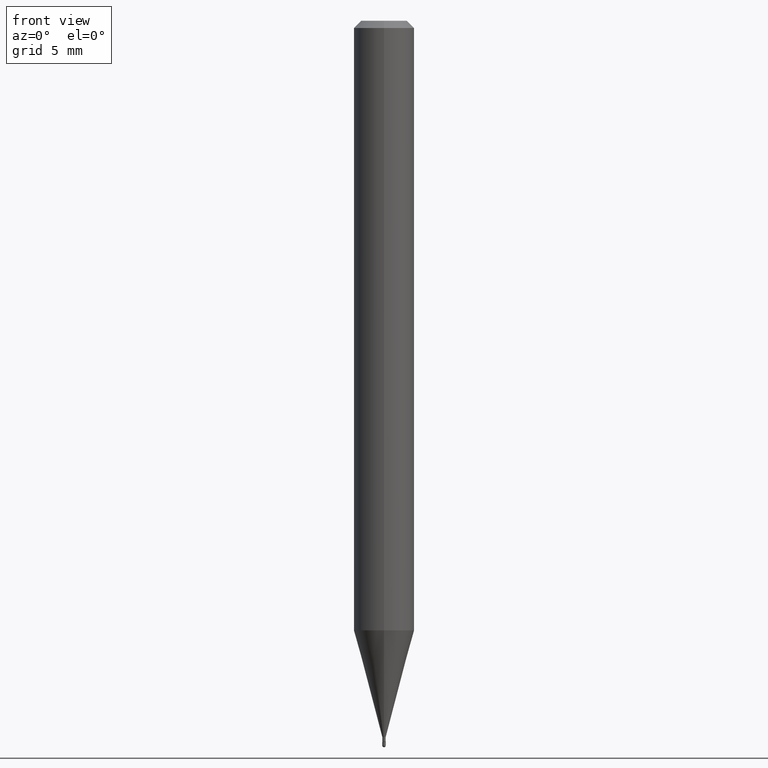
[diagram: clean part render]
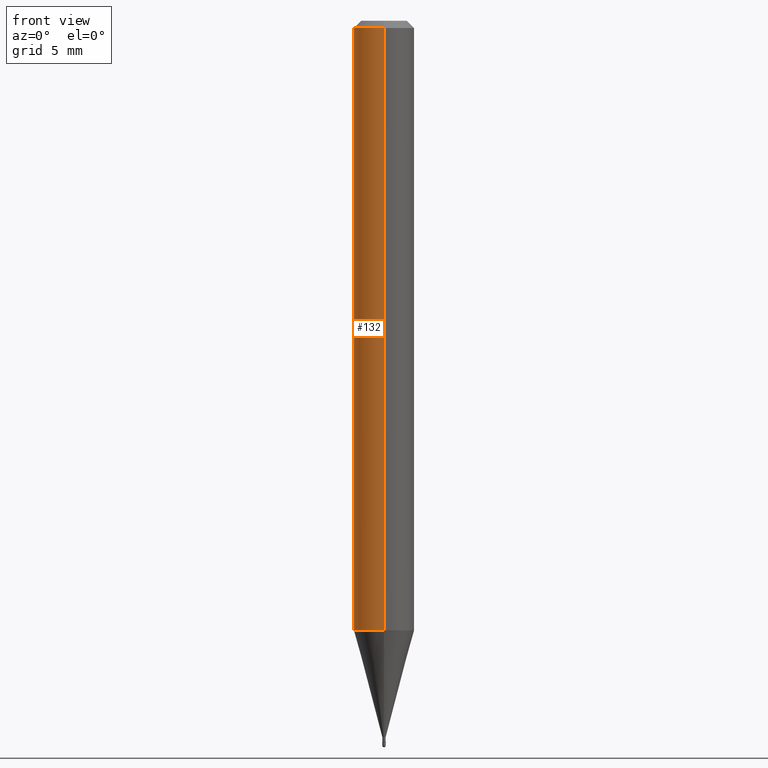
[diagram: same view with one face highlighted and labeled with its STEP entity id]
A machine part, front view. The second image highlights one B-rep face of the part: STEP entity #132.
In plain terms, the highlighted cylindrical surface (edge-blend (fillet) strip) has radius 1.5875 mm, axis along (-0, 0, 1).
Its self-contained STEP definition (entity closure, byte-faithful):
#3 = EDGE_CURVE ( 'NONE', #361, #146, #306, .T. ) ;
#24 = CIRCLE ( 'NONE', #94, 0.06250000000000000000 ) ;
#39 = DIRECTION ( 'NONE',  ( -6.982962677686265922E-15, -1.000000000000000000, 3.491477761697311641E-15 ) ) ;
#54 = CARTESIAN_POINT ( 'NONE',  ( 3.078381292588917151E-29, -4.395103637941402881E-15, -1.258809002353436624 ) ) ;
#55 = CARTESIAN_POINT ( 'NONE',  ( -4.364351673553916201E-16, -0.06250000000000000000, 2.182173601060819776E-16 ) ) ;
#59 = EDGE_CURVE ( 'NONE', #361, #133, #24, .T. ) ;
#60 = ORIENTED_EDGE ( 'NONE', *, *, #59, .T. ) ;
#85 = DIRECTION ( 'NONE',  ( -2.445471304092721818E-29, 3.491477761697311641E-15, 1.000000000000000000 ) ) ;
#94 = AXIS2_PLACEMENT_3D ( 'NONE', #54, #125, #171 ) ;
#125 = DIRECTION ( 'NONE',  ( -2.445471304092721818E-29, 3.491477761697311641E-15, 1.000000000000000000 ) ) ;
#128 = AXIS2_PLACEMENT_3D ( 'NONE', #271, #85, #463 ) ;
#132 = ADVANCED_FACE ( 'NONE', ( #159 ), #169, .T. ) ;
#133 = VERTEX_POINT ( 'NONE', #496 ) ;
#145 = CARTESIAN_POINT ( 'NONE',  ( 4.440892098500935790E-16, 0.06249999999999995143, -0.01499999999999997863 ) ) ;
#146 = VERTEX_POINT ( 'NONE', #145 ) ;
#159 = FACE_OUTER_BOUND ( 'NONE', #371, .T. ) ;
#165 = VECTOR ( 'NONE', #466, 39.37007874015748143 ) ;
#169 = CYLINDRICAL_SURFACE ( 'NONE', #403, 0.06250000000000000000 ) ;
#170 = EDGE_CURVE ( 'NONE', #146, #384, #268, .T. ) ;
#171 = DIRECTION ( 'NONE',  ( -6.982962677686265922E-15, -1.000000000000000000, 4.370956789862821150E-15 ) ) ;
#173 = ORIENTED_EDGE ( 'NONE', *, *, #300, .T. ) ;
#203 = CARTESIAN_POINT ( 'NONE',  ( 4.440892098500625669E-16, 0.06250000000000000000, -2.182173601060819776E-16 ) ) ;
#241 = DIRECTION ( 'NONE',  ( -2.445471304092721818E-29, 3.491477761697311641E-15, 1.000000000000000000 ) ) ;
#249 = CARTESIAN_POINT ( 'NONE',  ( 4.440892098500932831E-16, 0.06249999999999561462, -1.258809002353437068 ) ) ;
#262 = CARTESIAN_POINT ( 'NONE',  ( -4.364351673553912750E-16, -0.06250000000000005551, -0.01499999999999954321 ) ) ;
#268 = CIRCLE ( 'NONE', #128, 0.06250000000000000000 ) ;
#271 = CARTESIAN_POINT ( 'NONE',  ( 3.668206956139024136E-31, -5.237216642545884237E-17, -0.01499999999999976179 ) ) ;
#276 = LINE ( 'NONE', #55, #347 ) ;
#300 = EDGE_CURVE ( 'NONE', #133, #384, #276, .T. ) ;
#306 = LINE ( 'NONE', #203, #165 ) ;
#347 = VECTOR ( 'NONE', #354, 39.37007874015748143 ) ;
#354 = DIRECTION ( 'NONE',  ( -2.445471304092721818E-29, 3.491477761697311641E-15, 1.000000000000000000 ) ) ;
#361 = VERTEX_POINT ( 'NONE', #249 ) ;
#371 = EDGE_LOOP ( 'NONE', ( #432, #60, #173, #439 ) ) ;
#384 = VERTEX_POINT ( 'NONE', #262 ) ;
#403 = AXIS2_PLACEMENT_3D ( 'NONE', #431, #241, #39 ) ;
#431 = CARTESIAN_POINT ( 'NONE',  ( 0.000000000000000000, 0.000000000000000000, 0.000000000000000000 ) ) ;
#432 = ORIENTED_EDGE ( 'NONE', *, *, #3, .F. ) ;
#439 = ORIENTED_EDGE ( 'NONE', *, *, #170, .F. ) ;
#463 = DIRECTION ( 'NONE',  ( -6.982962677686265922E-15, -1.000000000000000000, 3.483106191921935554E-15 ) ) ;
#466 = DIRECTION ( 'NONE',  ( -2.445471304092721818E-29, 3.491477761697311641E-15, 1.000000000000000000 ) ) ;
#496 = CARTESIAN_POINT ( 'NONE',  ( -4.364351673553609038E-16, -0.06250000000000439926, -1.258809002353436401 ) ) ;